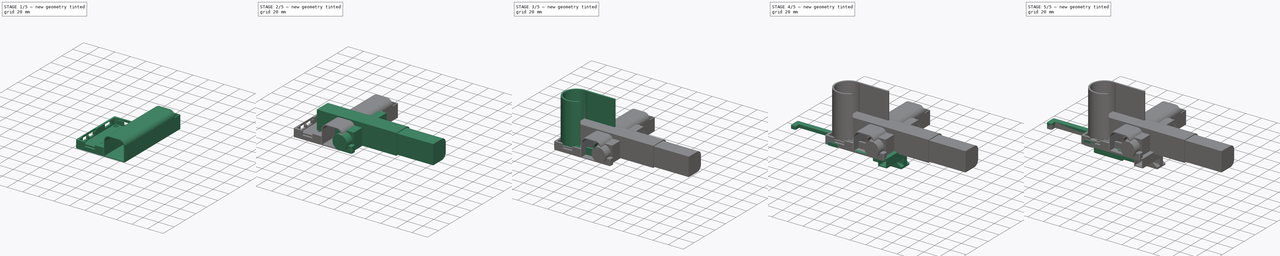
[diagram: build sequence overview — one tinted view per stage of 5, left to right]
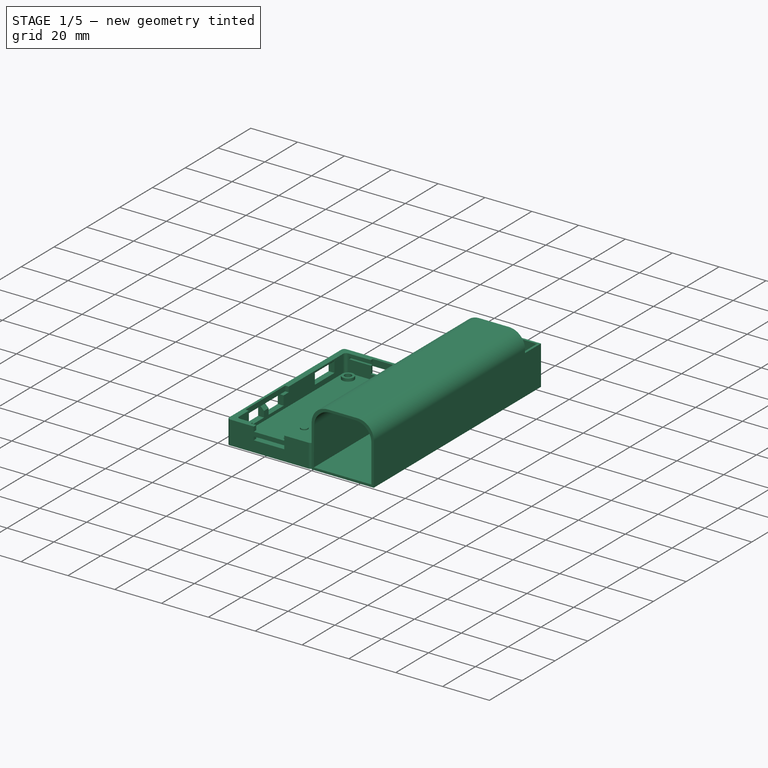
[diagram: stage 1 of 5 — iso view after this stage's code; geometry added in this stage tinted green]
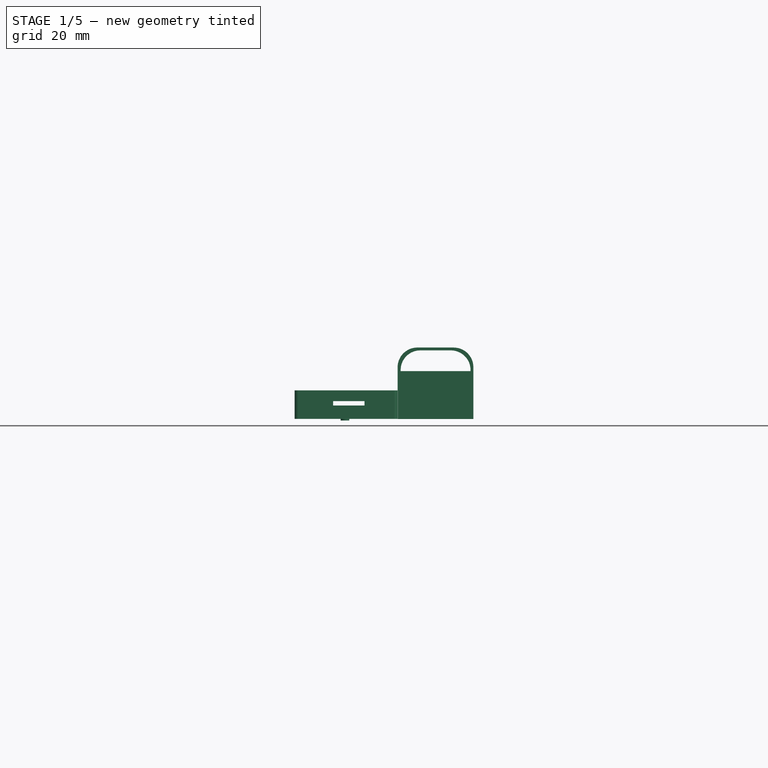
[diagram: stage 1 of 5 — front view after this stage's code; geometry added in this stage tinted green]
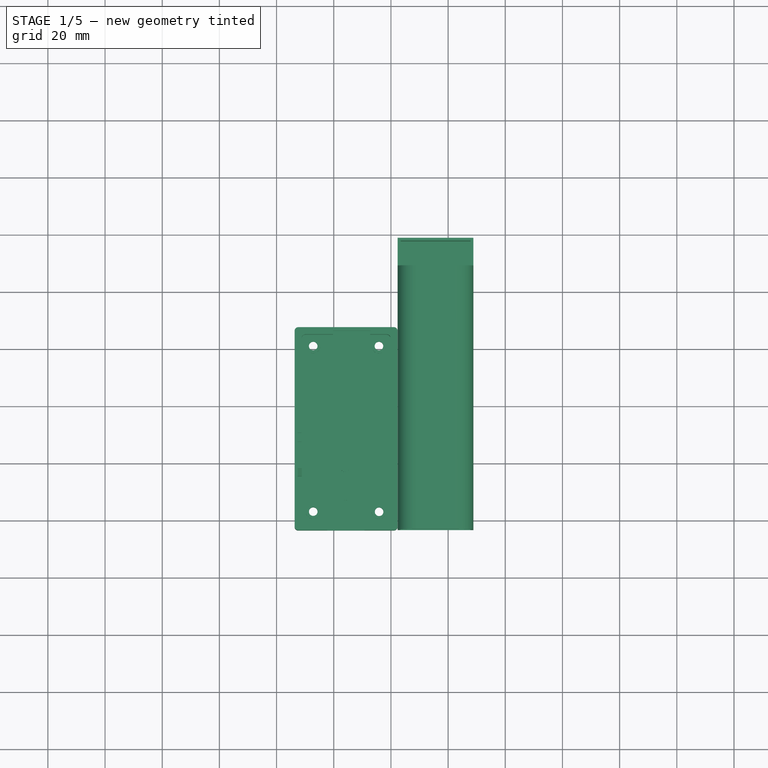
[diagram: stage 1 of 5 — top view after this stage's code; geometry added in this stage tinted green]
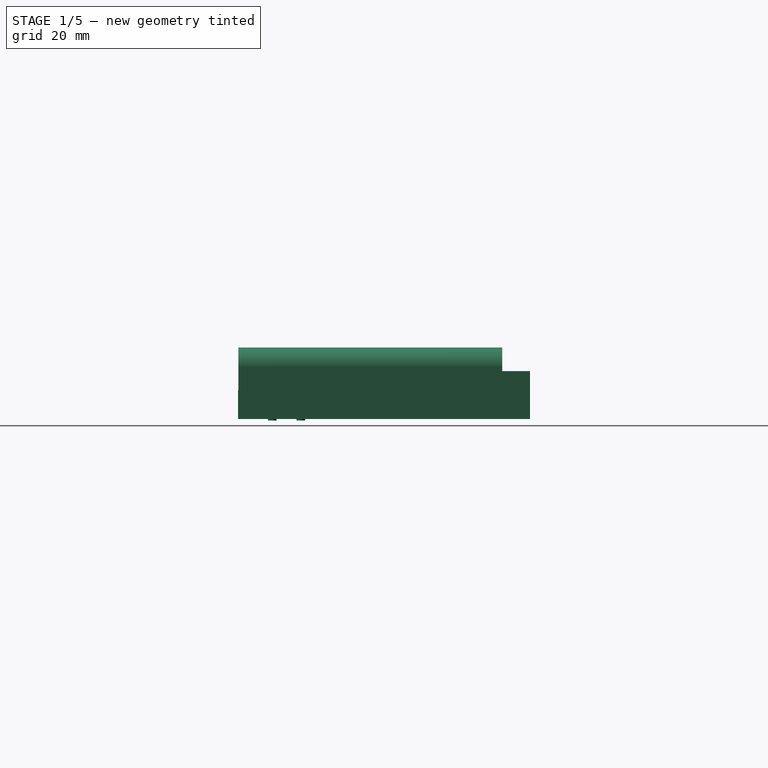
[diagram: stage 1 of 5 — right view after this stage's code; geometry added in this stage tinted green]
FCSTD DOCUMENT  (FreeCAD 0.16RUnknown)
Label: pinocs
License: All rights reserved
LicenseURL: http://en.wikipedia.org/wiki/All_rights_reserved
objects: Part::Cylinder×28, Part::Feature×22, Part::MultiFuse×15, Part::Cut×11, Part::Box×10, Sketcher::SketchObject×9, PartDesign::Pad×9
note: 113 computed .brp shape members not serialized (recipe doc carries the construction recipe); baked Part::Feature solids carry a one-line shape summary decoded from their .brp

FEATURE [Part::Cylinder] Cylinder014  label="shoulder1"
  Angle = 360
  Height = 3
  Placement = pos=(7.77947,-16.8556,0.338769) rot=(0,0,1;0rad)
  Radius = 2.5
FEATURE [Part::Cylinder] Cylinder015  label="hole1"
  Angle = 360
  Height = 6
  Placement = pos=(7.82251,-16.8117,-1) rot=(0,0,1;0rad)
  Radius = 1.5
FEATURE [Part::Cylinder] Cylinder016  label="shoulder2"
  Angle = 360
  Height = 3
  Placement = pos=(30.799,-16.8749,0.3389) rot=(0,0,1;0rad)
  Radius = 2.5
FEATURE [Part::Cylinder] Cylinder017  label="hole2"
  Angle = 360
  Height = 6
  Placement = pos=(30.8602,-16.8715,-0.999995) rot=(0,0,1;0rad)
  Radius = 1.5
FEATURE [Part::Cylinder] Cylinder018  label="shoulder3"
  Angle = 360
  Height = 3
  Placement = pos=(7.77844,41.1118,0.338848) rot=(0,0,1;0rad)
  Radius = 2.5
FEATURE [Part::Cylinder] Cylinder019  label="hole3"
  Angle = 360
  Height = 6
  Placement = pos=(7.807,41.1222,-1.00001) rot=(0,0,1;0rad)
  Radius = 1.5
FEATURE [Part::Cylinder] Cylinder020  label="shoulder4"
  Angle = 360
  Height = 3
  Placement = pos=(30.7954,41.0656,0.338937) rot=(0,0,1;0rad)
  Radius = 2.5
FEATURE [Part::Cylinder] Cylinder021  label="hole4"
  Angle = 360
  Height = 6
  Placement = pos=(30.804,41.1117,-1.00008) rot=(0,0,1;0rad)
  Radius = 1.5
FEATURE [Part::MultiFuse] Fusion002003003006  label="pi_case_shouldered"
  Shapes = -> [Pi_Zero_Case_CameraSlot001_solid001,Cylinder014,Cylinder016,Cylinder018,Cylinder020]
FEATURE [Part::MultiFuse] Fusion002003003007  label="pi_zero_holes"
  Shapes = -> [Cylinder015,Cylinder019,Cylinder017,Cylinder021]
FEATURE [Part::Cut] Cut001011  label="pi_case_with_holes"
  Base = -> Fusion002003003006
  Placement = pos=(-15,0,0.45) rot=(0,0,1;0rad)
  Tool = -> Fusion002003003007
FEATURE [Part::Feature] Fusion002003003013001  label="pinoc_small_w_batt_pack_r"
  shape: bbox 86.22 x 102.1 x 25 mm, 844 faces, 2 solids (baked)
FEATURE [Part::MultiFuse] Fusion002003003013002  label="pi_case_with_batt_pack"
  Shapes = -> [Cut001011003004001,Cut001011]
FEATURE [Part::Cylinder] Cylinder028
  Angle = 360
  Height = 3.5
  Placement = pos=(48,10,-2.5) rot=(0,1,0;1.5708rad)
  Radius = 1.5
FEATURE [Part::Cylinder] Cylinder029
  Angle = 360
  Height = 3.5
  Placement = pos=(48,20,-2.5) rot=(0,1,0;1.5708rad)
  Radius = 1.5
FEATURE [Part::MultiFuse] Fusion002003003013003  label="bracket_block_holes002"
  Placement = pos=(6.41151,-21.4199,51) rot=(0,1,0;1.5708rad)
  Shapes = -> [Cylinder028,Cylinder029]
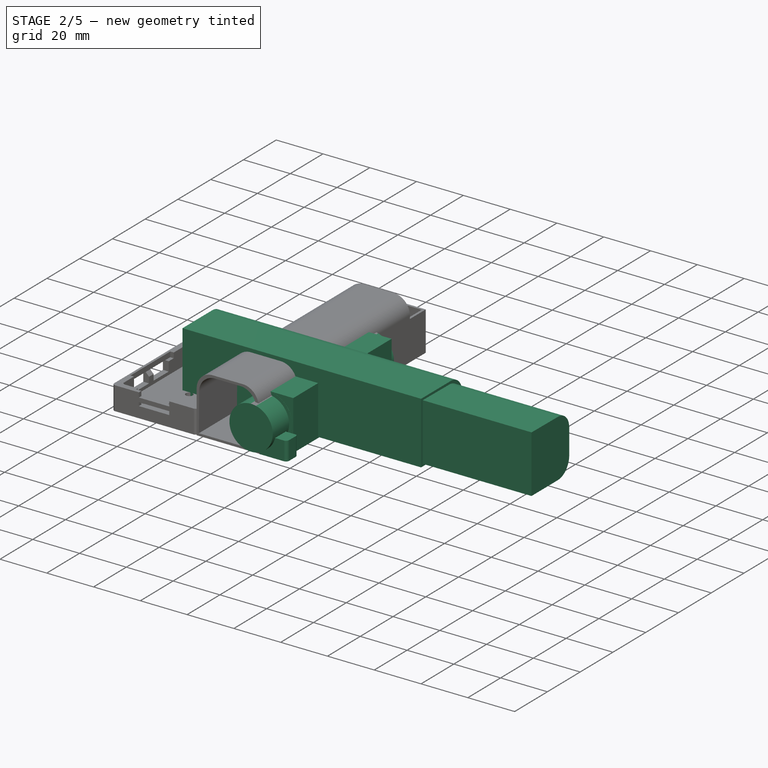
[diagram: stage 2 of 5 — iso view after this stage's code; geometry added in this stage tinted green]
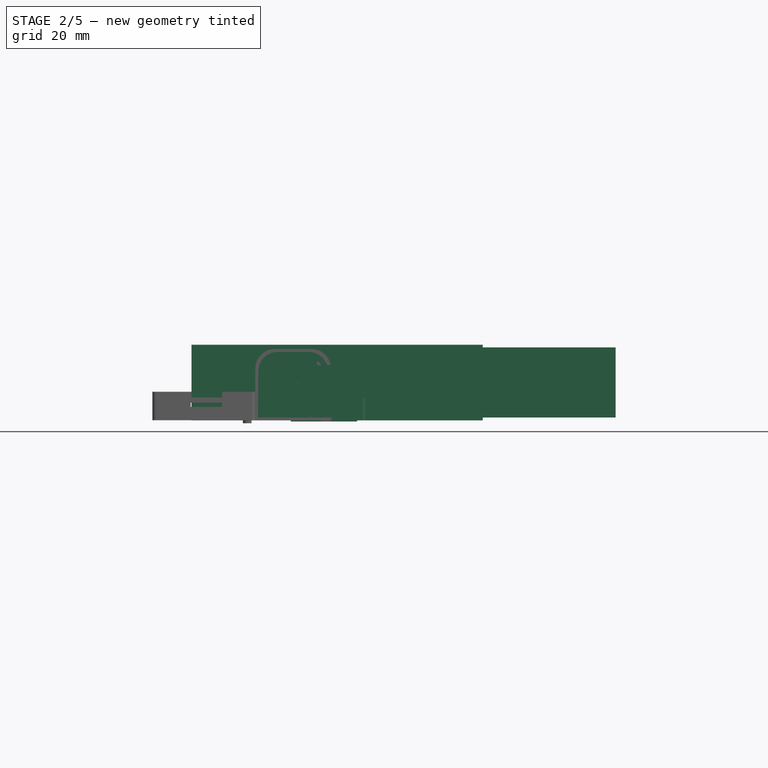
[diagram: stage 2 of 5 — front view after this stage's code; geometry added in this stage tinted green]
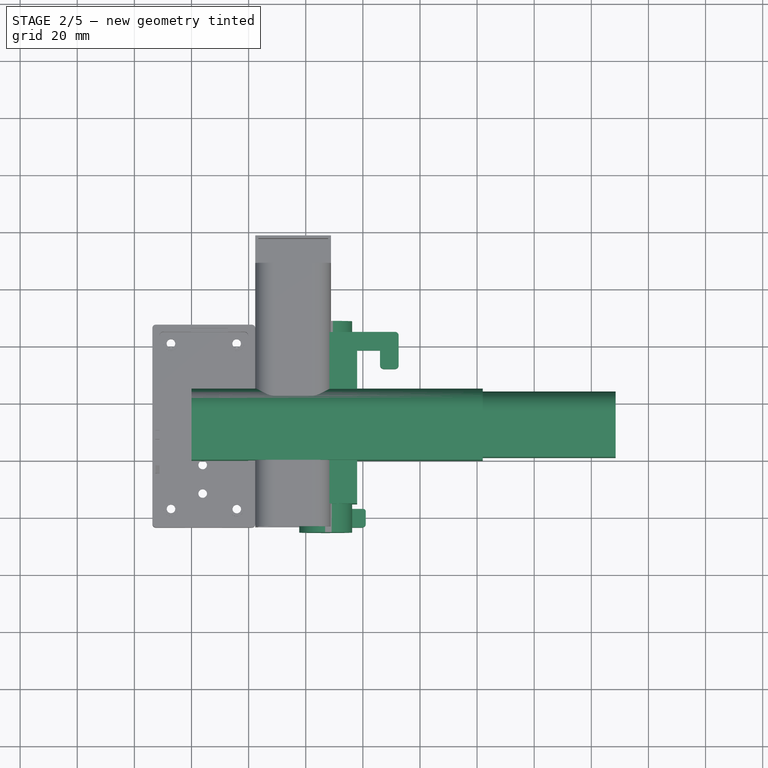
[diagram: stage 2 of 5 — top view after this stage's code; geometry added in this stage tinted green]
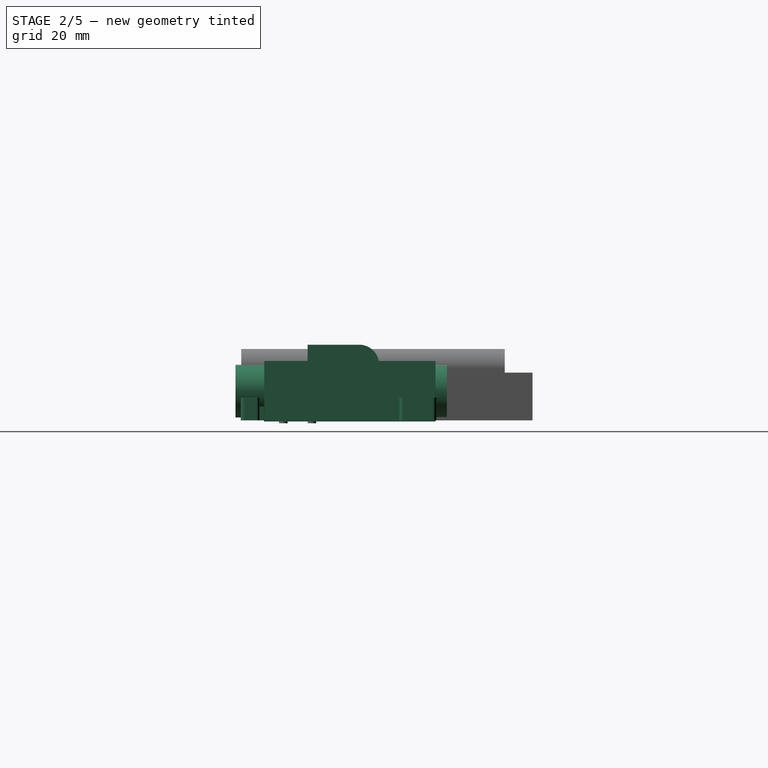
[diagram: stage 2 of 5 — right view after this stage's code; geometry added in this stage tinted green]
FEATURE [Part::Cylinder] Cylinder024
  Angle = 360
  Height = 3.5
  Placement = pos=(48,10,-2.5) rot=(0,1,0;1.5708rad)
  Radius = 1.5
FEATURE [Part::Cylinder] Cylinder025
  Angle = 360
  Height = 3.5
  Placement = pos=(48,20,-2.5) rot=(0,1,0;1.5708rad)
  Radius = 1.5
FEATURE [Part::MultiFuse] Fusion002003003011  label="bracket_block_holes001"
  Placement = pos=(22,-18.5,50.5) rot=(0,1,0;1.5708rad)
  Shapes = -> [Cylinder024,Cylinder025]
FEATURE [Part::Cylinder] Cylinder026
  Angle = 360
  Height = 60
  Placement = pos=(47,44.75,10.25) rot=(1,0,0;1.5708rad)
  Radius = 10.6
FEATURE [Part::Box] Box007  label="Cube005"
  Height = 10
  Length = 13
  Placement = pos=(34.7369,-15.2489,-0.392704) rot=(0,0,1;0rad)
  Width = 60
FEATURE [Part::Cylinder] Cylinder027
  Angle = 360
  Height = 74
  Placement = pos=(47,48.75,10.25) rot=(1,0,0;1.5708rad)
  Radius = 9.25
FEATURE [Part::Box] Box008  label="Cube006"
  Height = 21.2
  Length = 11
  Placement = pos=(47,-15.2,-0.39) rot=(0,0,1;0rad)
  Width = 60
FEATURE [PartDesign::Pad] Pad008003  label="batt_case_outer"
  Length = 102
  Length2 = 100
  Placement = pos=(0,0,0) rot=(0.57735,0.57735,0.57735;2.0944rad)
  Sketch = -> Sketch005
  Type = 0
FEATURE [PartDesign::Pad] Pad008004  label="batt_case_inner"
  Length = 110
  Length2 = 100
  Placement = pos=(38.5,0,0) rot=(0.57735,0.57735,0.57735;2.0944rad)
  Sketch = -> Sketch004
  Type = 0
FEATURE [Part::Feature] Pad008003001  label="batt_case_outer_r"
  shape: bbox 102 x 25 x 26.5 mm, 8 faces (baked)
FEATURE [Part::Feature] Pad008004001  label="batt_case_inner_r"
  Placement = pos=(-37.5,0,0) rot=(0,0,1;0rad)
  shape: bbox 110 x 23 x 24.58 mm, 9 faces (baked)
FEATURE [Part::Feature] Pad008004002  label="Bracket_4mm_Refined_90degPivot002"
  Placement = pos=(48.1,41.5384,0) rot=(0,0,1;1.5708rad)
  shape: bbox 24.5 x 68.5 x 4 mm, 19 faces (baked)
FEATURE [Part::Box] Box009  label="Cube007"
  Height = 28
  Length = 10
  Placement = pos=(-0.281725,16.7334,-0.728184) rot=(0,0,1;0rad)
  Width = 10
FEATURE [Part::Cut] Cut001011003003  label="batt_case_outer_with_cut"
  Base = -> Pad008003001
  Tool = -> Box009
FEATURE [Part::Cut] Cut001011003004  label="batt_case"
  Base = -> Cut001011003003
  Tool = -> Pad008004001
FEATURE [Part::Feature] Cut001011003004001  label="batt_case_r"
  Placement = pos=(48.842,78.75,0) rot=(0.57735,-0.57735,-0.57735;2.0944rad)
  shape: bbox 26.5 x 102 x 25 mm, 17 faces (baked)
FEATURE [Part::Feature] Pad008004003  label="Bracket_4mm_Refined_90degPivot003"
  Placement = pos=(48.1,41.5384,4) rot=(0,0,1;1.5708rad)
  shape: bbox 24.5 x 68.5 x 4 mm, 19 faces (baked)
FEATURE [Part::MultiFuse] Fusion002003003012  label="double_wide_bracket"
  Shapes = -> [Pad008004003,Pad008004002]
FEATURE [Part::Cut] Cut001011003004002  label="pinoc_large_w_batt_pack"
  Base = -> Fusion002003003013002
  Tool = -> Fusion002003003013003
FEATURE [Part::Feature] Cut001011003004002001  label="pinoc_large_w_batt_pack_r"
  shape: bbox 62.53 x 102.1 x 25 mm, 829 faces, 2 solids (baked)
FEATURE [Part::Feature] Cut001011003004002002  label="batt_case_r2"
  Placement = pos=(48.842,78.75,0) rot=(0.57735,-0.57735,-0.57735;2.0944rad)
  shape: bbox 26.5 x 102 x 25 mm, 17 faces (baked)
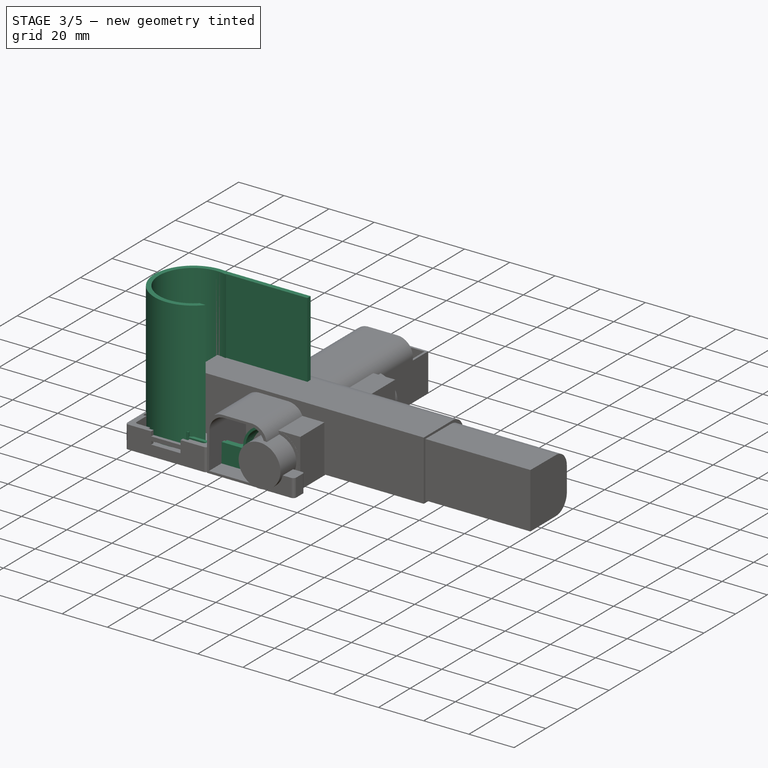
[diagram: stage 3 of 5 — iso view after this stage's code; geometry added in this stage tinted green]
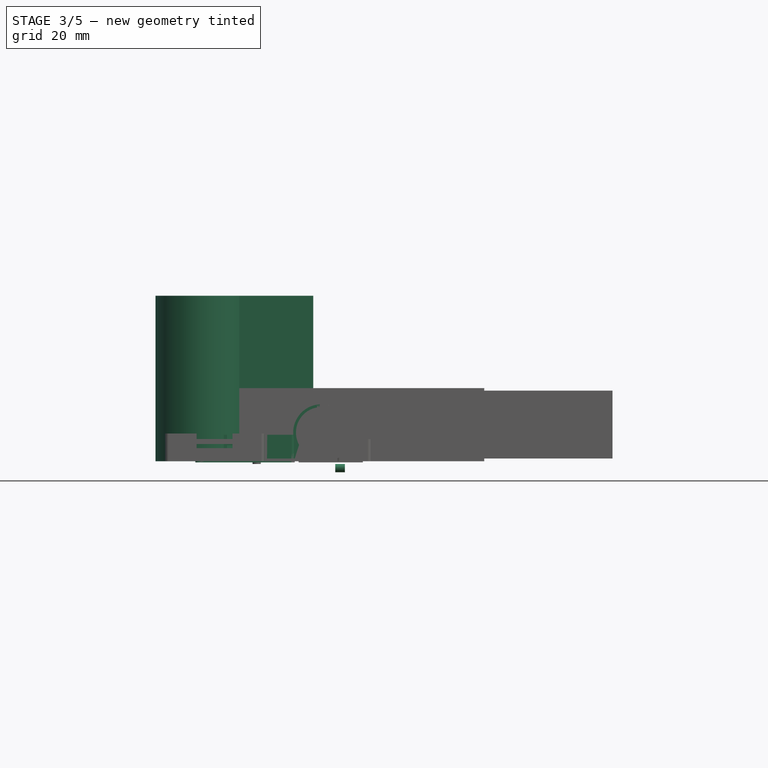
[diagram: stage 3 of 5 — front view after this stage's code; geometry added in this stage tinted green]
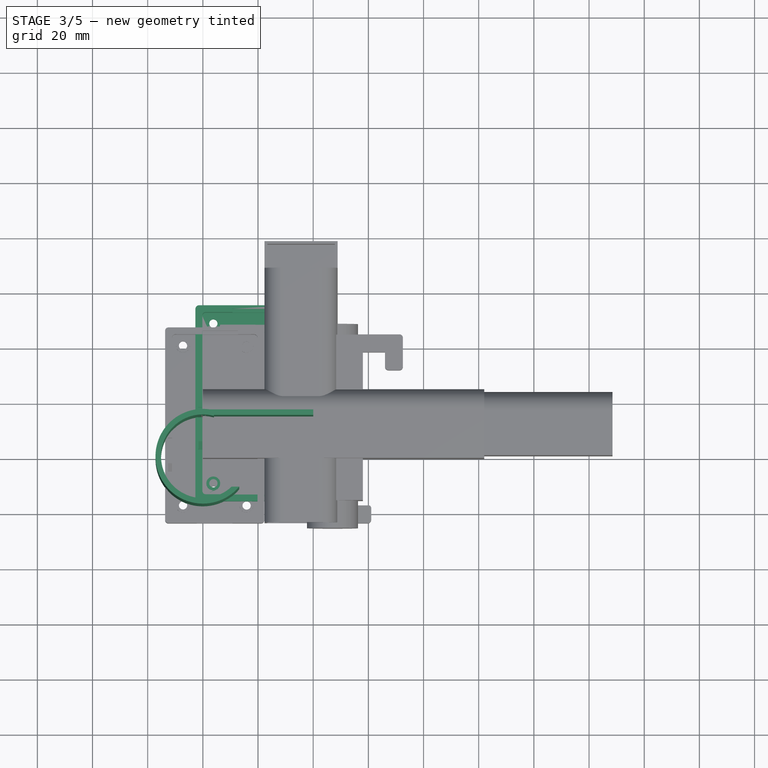
[diagram: stage 3 of 5 — top view after this stage's code; geometry added in this stage tinted green]
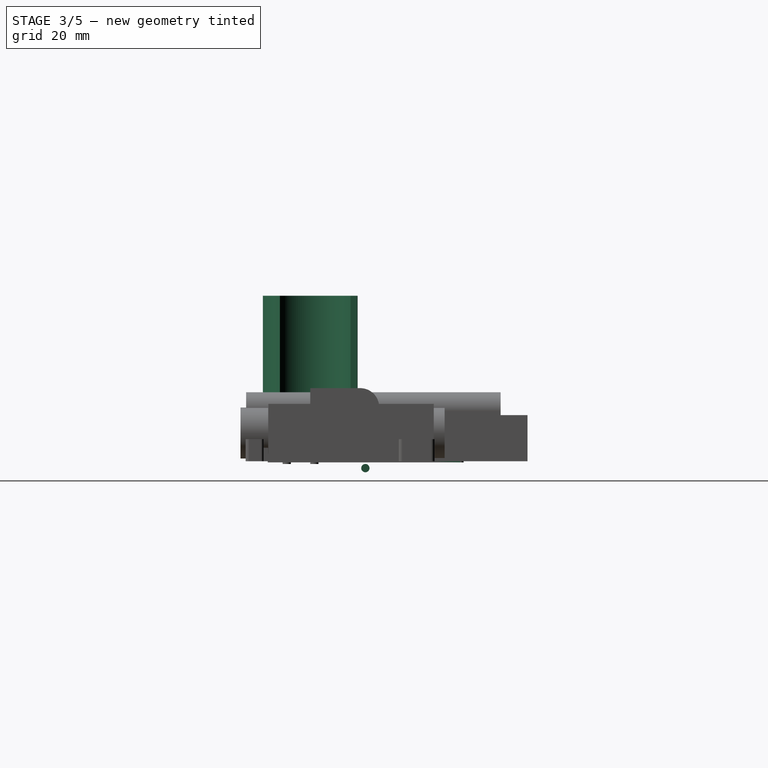
[diagram: stage 3 of 5 — right view after this stage's code; geometry added in this stage tinted green]
FEATURE [Part::Cylinder] Cylinder011
  Angle = 360
  Height = 3.5
  Placement = pos=(48,20,-2.5) rot=(0,1,0;1.5708rad)
  Radius = 1.5
FEATURE [Part::Feature] Pad008002  label="Bracket_4mm_Refined_90degPivot001"
  Placement = pos=(48.1,41.5384,0) rot=(0,0,1;1.5708rad)
  shape: bbox 24.5 x 68.5 x 4 mm, 19 faces (baked)
FEATURE [Part::Feature] Pi_Zero_Case_CameraSlot001_solid001  label="Pi_Zero_Case_CameraSlot001 (Solid)001"
  Placement = pos=(-17.1892,91.1012,2.09101) rot=(0,0,1;3.14159rad)
  shape: bbox 36 x 71 x 10 mm, 1202 faces (baked)
FEATURE [Part::Cylinder] Cylinder012
  Angle = 360
  Height = 60
  Placement = pos=(43,44.75,10.4) rot=(1,0,0;1.5708rad)
  Radius = 10.25
FEATURE [Part::Cylinder] Cylinder013
  Angle = 360
  Height = 74
  Placement = pos=(43,48.75,10.4) rot=(1,0,0;1.5708rad)
  Radius = 9.25
FEATURE [Part::Box] Box003  label="Cube001"
  Height = 10
  Length = 15
  Placement = pos=(33,-15.25,0) rot=(0,0,1;0rad)
  Width = 60
FEATURE [Part::Feature] Cut001011001  label="pi_case_with_holes_R"
  Placement = pos=(-4,8,0) rot=(0,0,1;0rad)
  shape: bbox 36 x 71 x 10 mm, 810 faces (baked)
FEATURE [Part::Box] Box004  label="Cube002"
  Height = 10
  Length = 5
  Placement = pos=(24.2804,-5.72009,-3.20188) rot=(0,0,1;0rad)
  Width = 51.5
FEATURE [Part::Cut] Cut001011002  label="pi_case_with_gpio_cut"
  Base = -> Cut001011001
  Tool = -> Box004
FEATURE [Part::MultiFuse] Fusion002003003008  label="assembly"
  Shapes = -> [Pad008002,Cylinder012,Box003,Cut001011002]
FEATURE [Part::Cut] Cut001011003  label="pi_case_with_batt_loop"
  Base = -> Fusion002003003008
  Tool = -> Cylinder013
FEATURE [Part::Feature] Cut001011003001  label="pi_case_with_batt_loop_R"
  shape: bbox 75.22 x 78.99 x 21.06 mm, 826 faces (baked)
FEATURE [Part::Cylinder] Cylinder022  label="Cylinder014"
  Angle = 360
  Height = 60
  Radius = 17.17
FEATURE [Part::Cylinder] Cylinder023  label="Cylinder015"
  Angle = 360
  Height = 64
  Placement = pos=(0,0,-2) rot=(0,0,1;0rad)
  Radius = 15.17
FEATURE [Part::Box] Box005  label="Cube003"
  Height = 60
  Length = 40
  Placement = pos=(0,15,0) rot=(0,0,1;0rad)
  Width = 2
FEATURE [Part::Box] Box006  label="Cube004"
  Height = 64
  Length = 15
  Placement = pos=(4,-11,-2) rot=(0,0,1;0rad)
  Width = 26
FEATURE [Part::MultiFuse] Fusion002003003009
  Shapes = -> [Cylinder023,Box006]
FEATURE [Part::MultiFuse] Fusion002003003010
  Shapes = -> [Cylinder022,Box005]
FEATURE [Part::Cut] Cut001011003002  label="small_ctl_panel"
  Base = -> Fusion002003003010
  Tool = -> Fusion002003003009
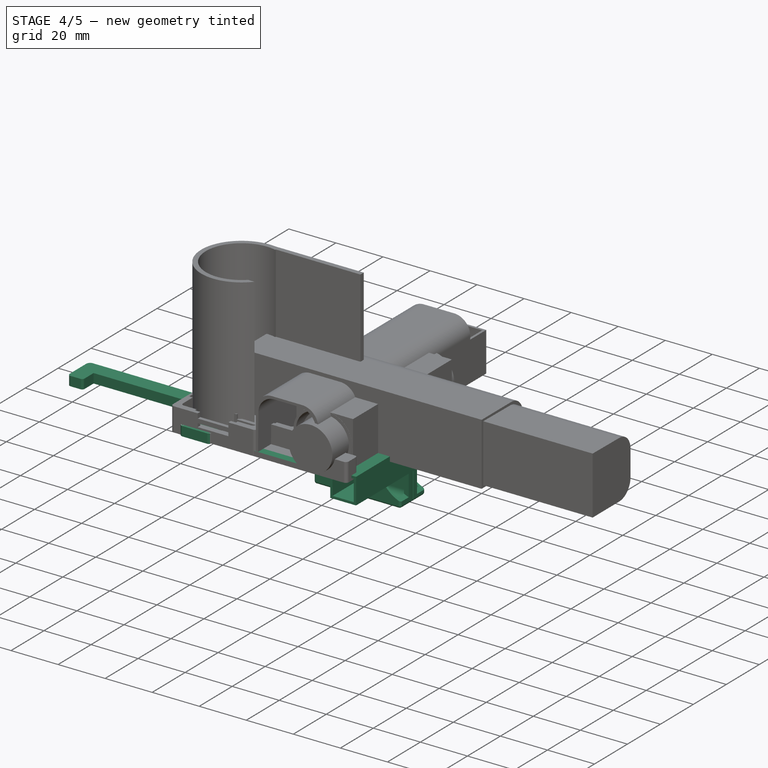
[diagram: stage 4 of 5 — iso view after this stage's code; geometry added in this stage tinted green]
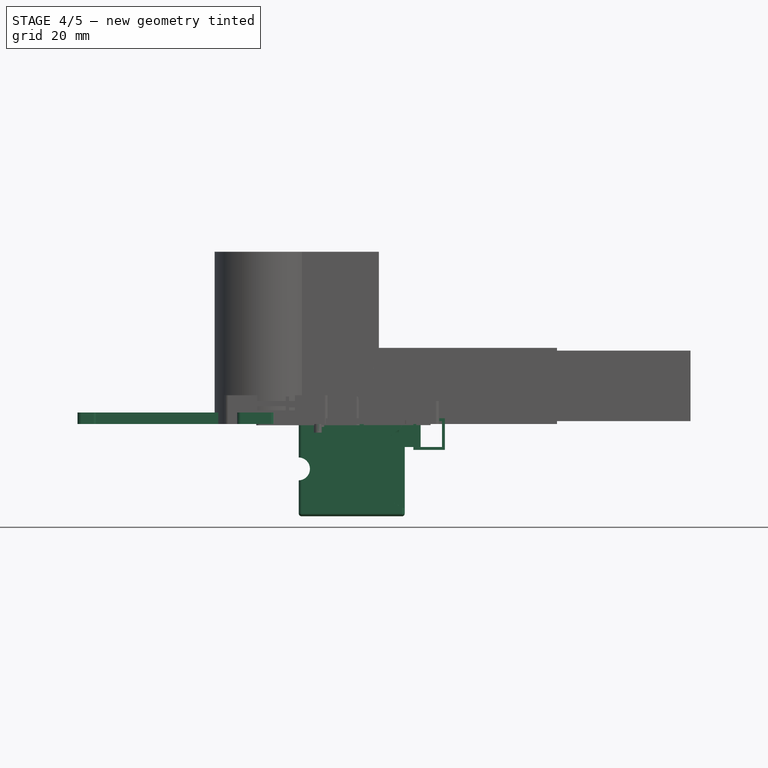
[diagram: stage 4 of 5 — front view after this stage's code; geometry added in this stage tinted green]
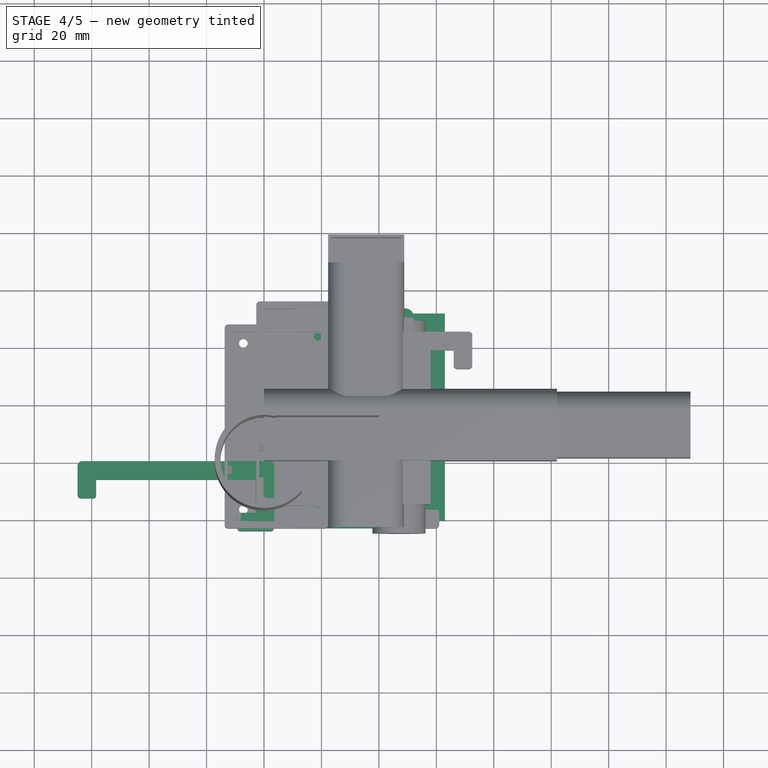
[diagram: stage 4 of 5 — top view after this stage's code; geometry added in this stage tinted green]
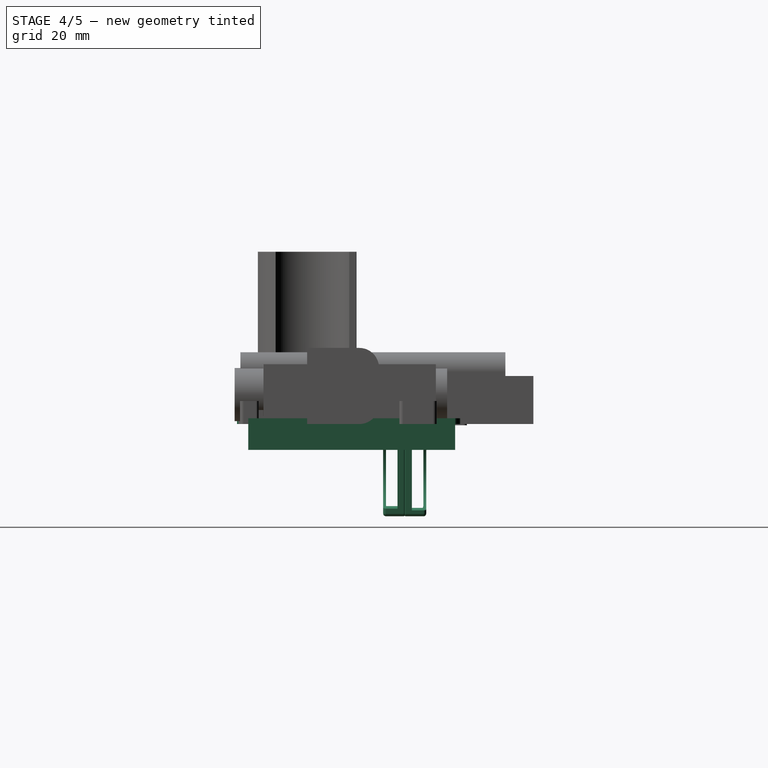
[diagram: stage 4 of 5 — right view after this stage's code; geometry added in this stage tinted green]
FEATURE [Part::Box] Box  label="PiPlate_sheath_outer"
  Height = 11
  Length = 11
  Placement = pos=(52,-20.5,-9) rot=(0,0,1;0rad)
  Width = 72
FEATURE [Part::Box] Box001  label="PiPlate_sheath_inner"
  Height = 9
  Length = 9
  Placement = pos=(53,-21.5,-8) rot=(0,0,1;0rad)
  Width = 74
FEATURE [Sketcher::SketchObject] Sketch007  label="PiPlate001"
  sketch-geometry (12):
    g0: LineSegment StartX=4 StartY=-23.3163 StartZ=0 EndX=49 EndY=-23.3163 EndZ=0
    g1: LineSegment StartX=52.3163 StartY=-20 StartZ=0 EndX=52.3163 EndY=50 EndZ=0
    g2: LineSegment StartX=49 StartY=53.3163 StartZ=0 EndX=4 EndY=53.3163 EndZ=0
    g3: LineSegment StartX=0.683731 StartY=50 StartZ=0 EndX=0.683731 EndY=-20 EndZ=0
    g4: ArcOfCircle CenterX=4 CenterY=50 CenterZ=0 NormalX=0 NormalY=0 NormalZ=1 Radius=3.31627 StartAngle=1.5708 EndAngle=3.14159
    g5: ArcOfCircle CenterX=49 CenterY=50 CenterZ=0 NormalX=0 NormalY=0 NormalZ=1 Radius=3.31627 StartAngle=0 EndAngle=1.5708
    g6: ArcOfCircle CenterX=49 CenterY=-20 CenterZ=0 NormalX=0 NormalY=0 NormalZ=1 Radius=3.31627 StartAngle=4.71239 EndAngle=6.28319
    g7: ArcOfCircle CenterX=4 CenterY=-20 CenterZ=0 NormalX=0 NormalY=0 NormalZ=1 Radius=3.31627 StartAngle=3.14159 EndAngle=4.71239
    g8: LineSegment [constr] StartX=4 StartY=50 StartZ=0 EndX=49 EndY=50 EndZ=0
    g9: LineSegment [constr] StartX=4 StartY=-20 StartZ=0 EndX=49 EndY=-20 EndZ=0
    g10: LineSegment [constr] StartX=4 StartY=50 StartZ=0 EndX=4 EndY=-20 EndZ=0
    g11: LineSegment [constr] StartX=49 StartY=-20 StartZ=0 EndX=49 EndY=50 EndZ=0
  constraints (27):
    c: Horizontal(g0)
    c: Horizontal(g2)
    c: Vertical(g1)
    c: Vertical(g3)
    c: Tangent(g3,g4) = -1.5708
    c: Tangent(g2,g4) = -1.5708
    c: Tangent(g2,g5) = -1.5708
    c: Tangent(g1,g5) = -1.5708
    c: Tangent(g1,g6) = -1.5708
    c: Tangent(g0,g6) = -1.5708
    c: Tangent(g0,g7) = -1.5708
    c: Tangent(g3,g7) = -1.5708
    c: Equal(g4,g6)
    c: Equal(g5,g7)
    c: Coincident(g8,g4)
    c: Coincident(g8,g5)
    c: Horizontal(g8)
    c: Coincident(g9,g7)
    c: Coincident(g9,g6)
    c: Coincident(g10,g4)
    c: Coincident(g10,g7)
    c: Coincident(g11,g6)
    c: Coincident(g11,g5)
    c: DistanceY(g10,g10) = 70
    c: DistanceX(g8,g8) = 45
    c: DistanceX(g7,g-1) = -4
    c: DistanceY(g7,g-1) = 20
FEATURE [PartDesign::Pad] Pad007  label="PiPlateBlank_NoPads"
  Length = 2
  Length2 = 100
  Sketch = -> Sketch007
  Type = 0
FEATURE [Part::Feature] Cut001007  label="BattBox004"
  Placement = pos=(11,34.4556,-10.4213) rot=(1,0,0;1.5708rad)
  shape: bbox 36.9 x 7.997 x 33 mm, 3760 faces (baked)
FEATURE [Part::Cut] Cut001008  label="PiPlateSheath"
  Base = -> Box
  Tool = -> Box001
FEATURE [Sketcher::SketchObject] Sketch008  label="BaseBracketSketch002"
  sketch-geometry (24):
    g0: LineSegment StartX=2.25303 StartY=0.0733442 StartZ=0 EndX=-63.2909 EndY=0.0733442 EndZ=0
    g1: LineSegment StartX=-2.93148 StartY=-17.9267 StartZ=0 EndX=-8.08736 EndY=-17.9267 EndZ=0
    g2: LineSegment StartX=-8.12007 StartY=-24.4267 StartZ=0 EndX=2.29473 EndY=-24.4267 EndZ=0
    g3: LineSegment StartX=3.56852 StartY=-1.24214 StartZ=0 EndX=3.56852 EndY=-23.1529 EndZ=0
    g4: LineSegment StartX=-2.93148 StartY=-6.42666 StartZ=0 EndX=-2.93148 EndY=-17.9267 EndZ=0
    g5: LineSegment StartX=-9.43148 StartY=-19.2708 StartZ=0 EndX=-9.43148 EndY=-23.1152 EndZ=0
    g6: LineSegment StartX=-64.9315 StartY=-1.56728 StartZ=0 EndX=-64.9315 EndY=-11.5969 EndZ=0
    g7: LineSegment StartX=-59.3978 StartY=-12.9267 StartZ=0 EndX=-63.6017 EndY=-12.9267 EndZ=0
    g8: LineSegment StartX=-58.4315 StartY=-11.9603 StartZ=0 EndX=-58.4315 EndY=-6.42666 EndZ=0
    g9: LineSegment StartX=-58.4315 StartY=-6.42666 StartZ=0 EndX=-2.93148 EndY=-6.42666 EndZ=0
    g10: LineSegment [constr] StartX=-2.93148 StartY=-6.42666 StartZ=0 EndX=3.56852 EndY=-6.42666 EndZ=0
    g11: LineSegment [constr] StartX=-2.93148 StartY=-6.42666 StartZ=0 EndX=-2.93148 EndY=0.0733442 EndZ=0
    g12: LineSegment [constr] StartX=-64.9315 StartY=-6.42666 StartZ=0 EndX=-58.4315 EndY=-6.42666 EndZ=0
    g13: LineSegment [constr] StartX=-62.8231 StartY=-6.42666 StartZ=0 EndX=-62.8231 EndY=-12.9267 EndZ=0
    g14: LineSegment [constr] StartX=-2.93148 StartY=-17.9267 StartZ=0 EndX=-2.93148 EndY=-24.4267 EndZ=0
    g15: LineSegment [constr] StartX=-2.93148 StartY=-21.2113 StartZ=0 EndX=-9.43148 EndY=-21.2113 EndZ=0
    g16: LineSegment [constr] StartX=-7.26896 StartY=-6.42666 StartZ=0 EndX=-7.26896 EndY=-17.9267 EndZ=0
    g17: ArcOfCircle CenterX=-59.3978 CenterY=-11.9603 CenterZ=0 NormalX=0 NormalY=0 NormalZ=1 Radius=0.966314 StartAngle=4.71239 EndAngle=6.28319
    g18: ArcOfCircle CenterX=-63.6017 CenterY=-11.5969 CenterZ=0 NormalX=0 NormalY=0 NormalZ=1 Radius=1.32973 StartAngle=3.14159 EndAngle=4.71239
    g19: ArcOfCircle CenterX=-63.2909 CenterY=-1.56728 CenterZ=0 NormalX=0 NormalY=0 NormalZ=1 Radius=1.64063 StartAngle=1.5708 EndAngle=3.14159
    g20: ArcOfCircle CenterX=2.25303 CenterY=-1.24214 CenterZ=0 NormalX=0 NormalY=0 NormalZ=1 Radius=1.31549 StartAngle=0 EndAngle=1.5708
    g21: ArcOfCircle CenterX=2.29473 CenterY=-23.1529 CenterZ=0 NormalX=0 NormalY=0 NormalZ=1 Radius=1.27379 StartAngle=4.71239 EndAngle=6.28319
    g22: ArcOfCircle CenterX=-8.12007 CenterY=-23.1152 CenterZ=0 NormalX=0 NormalY=0 NormalZ=1 Radius=1.31141 StartAngle=3.14159 EndAngle=4.71239
    g23: ArcOfCircle CenterX=-8.08736 CenterY=-19.2708 CenterZ=0 NormalX=0 NormalY=0 NormalZ=1 Radius=1.34411 StartAngle=1.5708 EndAngle=3.14159
  constraints (58):
    c: Horizontal(g2)
    c: Coincident(g4,g1)
    c: Vertical(g5)
    c: Parallel(g4,g3)
    c: Parallel(g1,g2)
    c: Horizontal(g0)
    c: Vertical(g8)
    c: Horizontal(g9)
    c: PointOnObject(g9,g4)
    c: PointOnObject(g4,g9)
    c: PointOnObject(g9,g8)
    c: PointOnObject(g8,g9)
    c: Perpendicular(g8,g7)
    c: Perpendicular(g7,g6)
    c: Perpendicular(g3,g0)
    c: Coincident(g10,g4)
    c: PointOnObject(g10,g3)
    c: Horizontal(g10)
    c: DistanceX(g10,g10) = 6.5
    c: Coincident(g11,g4)
    c: PointOnObject(g11,g0)
    c: Vertical(g11)
    c: DistanceY(g11,g11) = 6.5
    c: DistanceX(g9,g9) = 55.5
    c: PointOnObject(g12,g6)
    c: Coincident(g12,g8)
    c: Horizontal(g12)
    c: PointOnObject(g13,g12)
    c: PointOnObject(g13,g7)
    c: Vertical(g13)
    c: DistanceY(g13,g13) = 6.5
    c: DistanceX(g12,g12) = 6.5
    c: Coincident(g14,g1)
    c: PointOnObject(g14,g2)
    c: Vertical(g14)
    c: DistanceY(g14,g14) = 6.5
    c: PointOnObject(g15,g5)
    c: Horizontal(g15)
    c: PointOnObject(g15,g14)
    c: DistanceX(g15,g15) = 6.5
    c: PointOnObject(g16,g9)
    c: PointOnObject(g16,g1)
    c: Vertical(g16)
    c: DistanceY(g16,g16) = 11.5
    c: Tangent(g8,g17) = -1.5708
    c: Tangent(g7,g17) = 1.5708
    c: Tangent(g7,g18) = 1.5708
    c: Tangent(g6,g18) = -1.5708
    c: Tangent(g6,g19) = -1.5708
    c: Tangent(g0,g19) = -1.5708
    c: Tangent(g0,g20) = -1.5708
    c: Tangent(g3,g20) = 1.5708
    c: Tangent(g3,g21) = 1.5708
    c: Tangent(g2,g21) = -1.5708
    c: Tangent(g2,g22) = -1.5708
    c: Tangent(g5,g22) = -1.5708
    c: Tangent(g1,g23) = -1.5708
    c: Tangent(g5,g23) = -1.5708
FEATURE [PartDesign::Pad] Pad008  label="Bracket_4mm001"
  Length = 4
  Length2 = 100
  Sketch = -> Sketch008
  Type = 0
FEATURE [Part::Feature] Pad008001  label="Bracket_4mm_Refined_90degPivot"
  Placement = pos=(48.1,41.5384,0) rot=(0,0,1;1.5708rad)
  shape: bbox 24.5 x 68.5 x 4 mm, 19 faces (baked)
FEATURE [Part::Feature] Cut001009  label="BattBox005"
  Placement = pos=(11,33.4538,-20.803) rot=(-1,0,0;1.5708rad)
  shape: bbox 36.9 x 7.997 x 33 mm, 3760 faces (baked)
FEATURE [Part::MultiFuse] Fusion002003003  label="DualBatt"
  Shapes = -> [Cut001009,Cut001007]
FEATURE [Part::Feature] Fusion002003003001  label="DualBatt_Refined"
  Placement = pos=(75.25,4,33.15) rot=(0,0,1;1.5708rad)
  shape: bbox 15 x 36.9 x 33.02 mm, 5314 faces (baked)
FEATURE [Part::Cylinder] Cylinder006
  Angle = 360
  Height = 10
  Placement = pos=(18.75,43.5,-3) rot=(0,0,1;0rad)
  Radius = 1.375
FEATURE [Part::Cylinder] Cylinder009
  Angle = 360
  Height = 10
  Placement = pos=(18.75,-14.75,-3) rot=(0,0,1;0rad)
  Radius = 1.375
FEATURE [Part::MultiFuse] Fusion002003003003  label="hole-cuts2"
  Shapes = -> [Cylinder006,Cylinder009]
FEATURE [Part::Box] Box002  label="Cube"
  Height = 12
  Length = 6.5
  Placement = pos=(48.026,5,-8) rot=(0,0,1;0rad)
  Width = 20
FEATURE [Part::MultiFuse] Fusion002003003004  label="BracketWithBlock_C"
  Shapes = -> [Box002,Pad008001]
FEATURE [Part::Cylinder] Cylinder010
  Angle = 360
  Height = 3.5
  Placement = pos=(48,10,-2.5) rot=(0,1,0;1.5708rad)
  Radius = 1.5
FEATURE [Part::MultiFuse] Fusion002003003005  label="bracket_block_holes"
  Shapes = -> [Cylinder010,Cylinder011]
FEATURE [Part::Cut] Cut001010  label="BracketBlock_Final_C"
  Base = -> Fusion002003003004
  Tool = -> Fusion002003003005
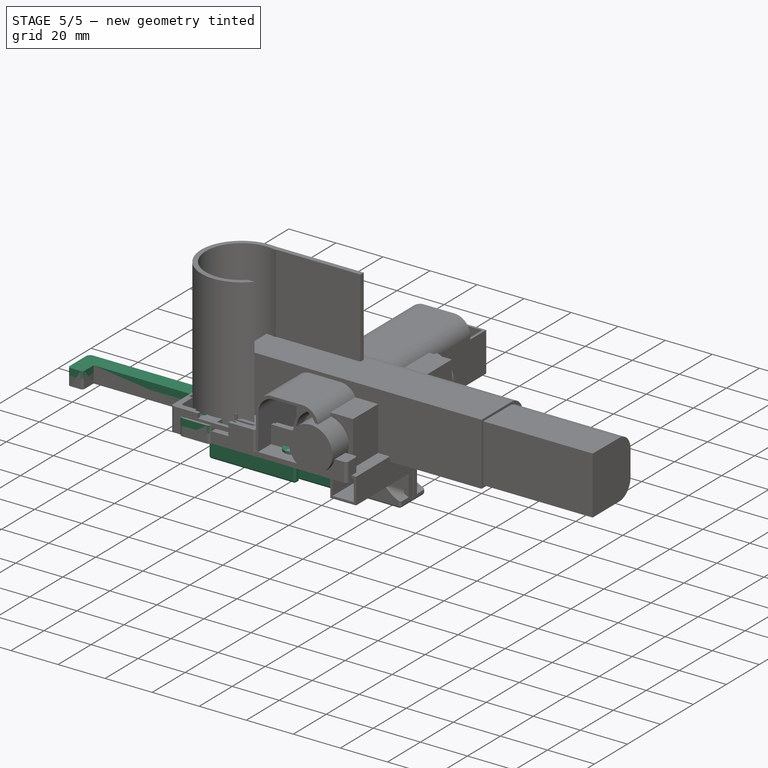
[diagram: stage 5 of 5 — iso view after this stage's code; geometry added in this stage tinted green]
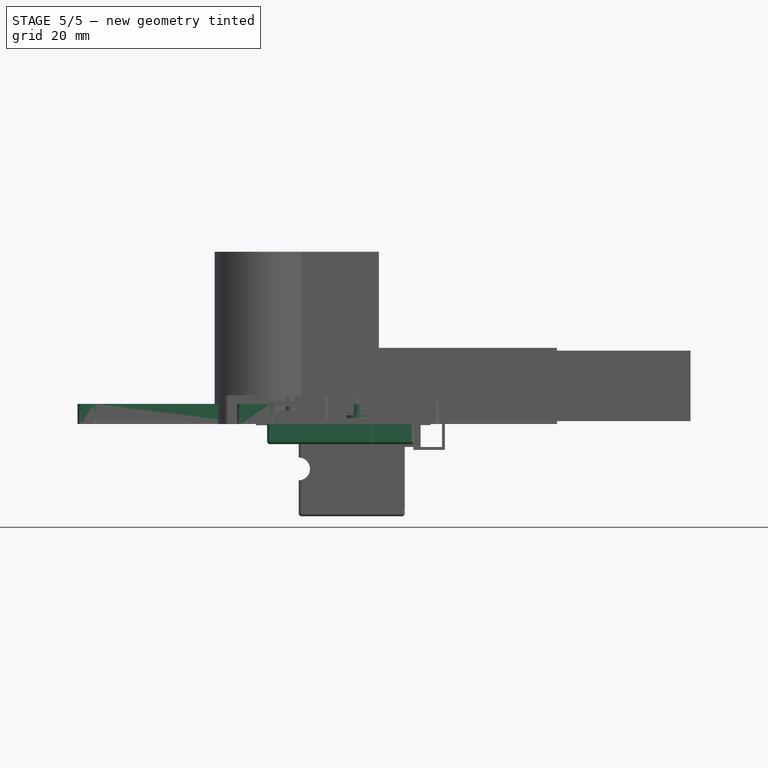
[diagram: stage 5 of 5 — front view after this stage's code; geometry added in this stage tinted green]
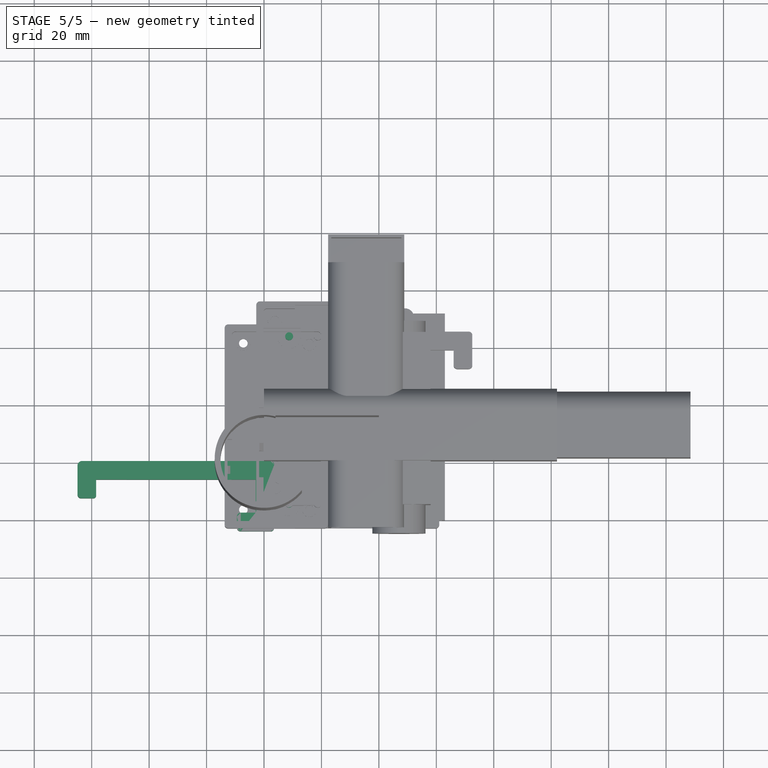
[diagram: stage 5 of 5 — top view after this stage's code; geometry added in this stage tinted green]
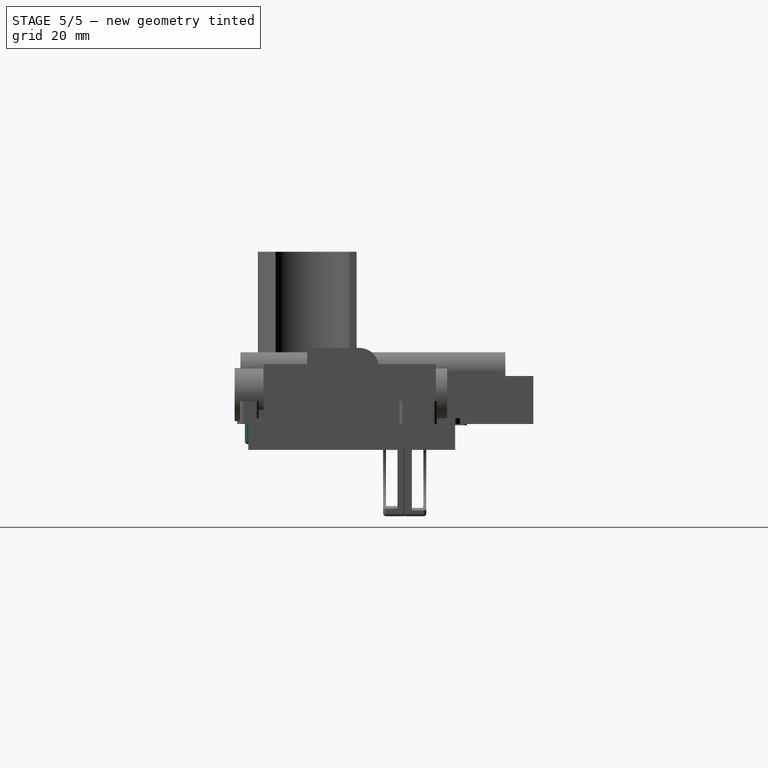
[diagram: stage 5 of 5 — right view after this stage's code; geometry added in this stage tinted green]
FEATURE [Sketcher::SketchObject] Sketch  label="BaseBracketSketch"
  sketch-geometry (24):
    g0: LineSegment StartX=2.25303 StartY=0.0733442 StartZ=0 EndX=-63.2909 EndY=0.0733442 EndZ=0
    g1: LineSegment StartX=-2.93148 StartY=-17.9267 StartZ=0 EndX=-8.08736 EndY=-17.9267 EndZ=0
    g2: LineSegment StartX=-8.12007 StartY=-24.4267 StartZ=0 EndX=2.29473 EndY=-24.4267 EndZ=0
    g3: LineSegment StartX=3.56852 StartY=-1.24214 StartZ=0 EndX=3.56852 EndY=-23.1529 EndZ=0
    g4: LineSegment StartX=-2.93148 StartY=-6.42666 StartZ=0 EndX=-2.93148 EndY=-17.9267 EndZ=0
    g5: LineSegment StartX=-9.43148 StartY=-19.2708 StartZ=0 EndX=-9.43148 EndY=-23.1152 EndZ=0
    g6: LineSegment StartX=-64.9315 StartY=-1.56728 StartZ=0 EndX=-64.9315 EndY=-11.5969 EndZ=0
    g7: LineSegment StartX=-59.3978 StartY=-12.9267 StartZ=0 EndX=-63.6017 EndY=-12.9267 EndZ=0
    g8: LineSegment StartX=-58.4315 StartY=-11.9603 StartZ=0 EndX=-58.4315 EndY=-6.42666 EndZ=0
    g9: LineSegment StartX=-58.4315 StartY=-6.42666 StartZ=0 EndX=-2.93148 EndY=-6.42666 EndZ=0
    g10: LineSegment [constr] StartX=-2.93148 StartY=-6.42666 StartZ=0 EndX=3.56852 EndY=-6.42666 EndZ=0
    g11: LineSegment [constr] StartX=-2.93148 StartY=-6.42666 StartZ=0 EndX=-2.93148 EndY=0.0733442 EndZ=0
    g12: LineSegment [constr] StartX=-64.9315 StartY=-6.42666 StartZ=0 EndX=-58.4315 EndY=-6.42666 EndZ=0
    g13: LineSegment [constr] StartX=-62.8231 StartY=-6.42666 StartZ=0 EndX=-62.8231 EndY=-12.9267 EndZ=0
    g14: LineSegment [constr] StartX=-2.93148 StartY=-17.9267 StartZ=0 EndX=-2.93148 EndY=-24.4267 EndZ=0
    g15: LineSegment [constr] StartX=-2.93148 StartY=-21.2113 StartZ=0 EndX=-9.43148 EndY=-21.2113 EndZ=0
    g16: LineSegment [constr] StartX=-7.26896 StartY=-6.42666 StartZ=0 EndX=-7.26896 EndY=-17.9267 EndZ=0
    g17: ArcOfCircle CenterX=-59.3978 CenterY=-11.9603 CenterZ=0 NormalX=0 NormalY=0 NormalZ=1 Radius=0.966314 StartAngle=4.71239 EndAngle=6.28319
    g18: ArcOfCircle CenterX=-63.6017 CenterY=-11.5969 CenterZ=0 NormalX=0 NormalY=0 NormalZ=1 Radius=1.32973 StartAngle=3.14159 EndAngle=4.71239
    g19: ArcOfCircle CenterX=-63.2909 CenterY=-1.56728 CenterZ=0 NormalX=0 NormalY=0 NormalZ=1 Radius=1.64063 StartAngle=1.5708 EndAngle=3.14159
    g20: ArcOfCircle CenterX=2.25303 CenterY=-1.24214 CenterZ=0 NormalX=0 NormalY=0 NormalZ=1 Radius=1.31549 StartAngle=0 EndAngle=1.5708
    g21: ArcOfCircle CenterX=2.29473 CenterY=-23.1529 CenterZ=0 NormalX=0 NormalY=0 NormalZ=1 Radius=1.27379 StartAngle=4.71239 EndAngle=6.28319
    g22: ArcOfCircle CenterX=-8.12007 CenterY=-23.1152 CenterZ=0 NormalX=0 NormalY=0 NormalZ=1 Radius=1.31141 StartAngle=3.14159 EndAngle=4.71239
    g23: ArcOfCircle CenterX=-8.08736 CenterY=-19.2708 CenterZ=0 NormalX=0 NormalY=0 NormalZ=1 Radius=1.34411 StartAngle=1.5708 EndAngle=3.14159
  constraints (58):
    c: Horizontal(g2)
    c: Coincident(g4,g1)
    c: Vertical(g5)
    c: Parallel(g4,g3)
    c: Parallel(g1,g2)
    c: Horizontal(g0)
    c: Vertical(g8)
    c: Horizontal(g9)
    c: PointOnObject(g9,g4)
    c: PointOnObject(g4,g9)
    c: PointOnObject(g9,g8)
    c: PointOnObject(g8,g9)
    c: Perpendicular(g8,g7)
    c: Perpendicular(g7,g6)
    c: Perpendicular(g3,g0)
    c: Coincident(g10,g4)
    c: PointOnObject(g10,g3)
    c: Horizontal(g10)
    c: DistanceX(g10,g10) = 6.5
    c: Coincident(g11,g4)
    c: PointOnObject(g11,g0)
    c: Vertical(g11)
    c: DistanceY(g11,g11) = 6.5
    c: DistanceX(g9,g9) = 55.5
    c: PointOnObject(g12,g6)
    c: Coincident(g12,g8)
    c: Horizontal(g12)
    c: PointOnObject(g13,g12)
    c: PointOnObject(g13,g7)
    c: Vertical(g13)
    c: DistanceY(g13,g13) = 6.5
    c: DistanceX(g12,g12) = 6.5
    c: Coincident(g14,g1)
    c: PointOnObject(g14,g2)
    c: Vertical(g14)
    c: DistanceY(g14,g14) = 6.5
    c: PointOnObject(g15,g5)
    c: Horizontal(g15)
    c: PointOnObject(g15,g14)
    c: DistanceX(g15,g15) = 6.5
    c: PointOnObject(g16,g9)
    c: PointOnObject(g16,g1)
    c: Vertical(g16)
    c: DistanceY(g16,g16) = 11.5
    c: Tangent(g8,g17) = -1.5708
    c: Tangent(g7,g17) = 1.5708
    c: Tangent(g7,g18) = 1.5708
    c: Tangent(g6,g18) = -1.5708
    c: Tangent(g6,g19) = -1.5708
    c: Tangent(g0,g19) = -1.5708
    c: Tangent(g0,g20) = -1.5708
    c: Tangent(g3,g20) = 1.5708
    c: Tangent(g3,g21) = 1.5708
    c: Tangent(g2,g21) = -1.5708
    c: Tangent(g2,g22) = -1.5708
    c: Tangent(g5,g22) = -1.5708
    c: Tangent(g1,g23) = -1.5708
    c: Tangent(g5,g23) = -1.5708
FEATURE [Sketcher::SketchObject] Sketch001  label="PiPlate"
  sketch-geometry (12):
    g0: LineSegment StartX=4 StartY=-23.3163 StartZ=0 EndX=49 EndY=-23.3163 EndZ=0
    g1: LineSegment StartX=52.3163 StartY=-20 StartZ=0 EndX=52.3163 EndY=50 EndZ=0
    g2: LineSegment StartX=49 StartY=53.3163 StartZ=0 EndX=4 EndY=53.3163 EndZ=0
    g3: LineSegment StartX=0.683731 StartY=50 StartZ=0 EndX=0.683731 EndY=-20 EndZ=0
    g4: ArcOfCircle CenterX=4 CenterY=50 CenterZ=0 NormalX=0 NormalY=0 NormalZ=1 Radius=3.31627 StartAngle=1.5708 EndAngle=3.14159
    g5: ArcOfCircle CenterX=49 CenterY=50 CenterZ=0 NormalX=0 NormalY=0 NormalZ=1 Radius=3.31627 StartAngle=0 EndAngle=1.5708
    g6: ArcOfCircle CenterX=49 CenterY=-20 CenterZ=0 NormalX=0 NormalY=0 NormalZ=1 Radius=3.31627 StartAngle=4.71239 EndAngle=6.28319
    g7: ArcOfCircle CenterX=4 CenterY=-20 CenterZ=0 NormalX=0 NormalY=0 NormalZ=1 Radius=3.31627 StartAngle=3.14159 EndAngle=4.71239
    g8: LineSegment [constr] StartX=4 StartY=50 StartZ=0 EndX=49 EndY=50 EndZ=0
    g9: LineSegment [constr] StartX=4 StartY=-20 StartZ=0 EndX=49 EndY=-20 EndZ=0
    g10: LineSegment [constr] StartX=4 StartY=50 StartZ=0 EndX=4 EndY=-20 EndZ=0
    g11: LineSegment [constr] StartX=49 StartY=-20 StartZ=0 EndX=49 EndY=50 EndZ=0
  constraints (27):
    c: Horizontal(g0)
    c: Horizontal(g2)
    c: Vertical(g1)
    c: Vertical(g3)
    c: Tangent(g3,g4) = -1.5708
    c: Tangent(g2,g4) = -1.5708
    c: Tangent(g2,g5) = -1.5708
    c: Tangent(g1,g5) = -1.5708
    c: Tangent(g1,g6) = -1.5708
    c: Tangent(g0,g6) = -1.5708
    c: Tangent(g0,g7) = -1.5708
    c: Tangent(g3,g7) = -1.5708
    c: Equal(g4,g6)
    c: Equal(g5,g7)
    c: Coincident(g8,g4)
    c: Coincident(g8,g5)
    c: Horizontal(g8)
    c: Coincident(g9,g7)
    c: Coincident(g9,g6)
    c: Coincident(g10,g4)
    c: Coincident(g10,g7)
    c: Coincident(g11,g6)
    c: Coincident(g11,g5)
    c: DistanceY(g10,g10) = 70
    c: DistanceX(g8,g8) = 45
    c: DistanceX(g7,g-1) = -4
    c: DistanceY(g7,g-1) = 20
FEATURE [Sketcher::SketchObject] Sketch002  label="PiHoles"
  Placement = pos=(0,0,0) rot=(1,0,0;3.14159rad)
  sketch-geometry (7):
    g0: Circle CenterX=8.75 CenterY=15.25 CenterZ=0 NormalX=0 NormalY=0 NormalZ=1 Radius=1.375
    g1: Circle CenterX=32.6 CenterY=15.25 CenterZ=0 NormalX=0 NormalY=0 NormalZ=1 Radius=1.375
    g2: Circle CenterX=8.75 CenterY=-43 CenterZ=0 NormalX=0 NormalY=0 NormalZ=1 Radius=1.375
    g3: Circle CenterX=32.6 CenterY=-43 CenterZ=0 NormalX=0 NormalY=0 NormalZ=1 Radius=1.375
    g4: LineSegment [constr] StartX=8.75 StartY=15.25 StartZ=0 EndX=8.75 EndY=-43 EndZ=0
    g5: LineSegment [constr] StartX=32.6 StartY=15.25 StartZ=0 EndX=32.6 EndY=-43 EndZ=0
    g6: LineSegment [constr] StartX=8.75 StartY=-43 StartZ=0 EndX=32.6 EndY=-43 EndZ=0
  constraints (18):
    c: Radius(g0) = 1.375
    c: Equal(g1,g3)
    c: Equal(g3,g2)
    c: Equal(g2,g0)
    c: DistanceX(g0,g1) = 23.85
    c: Coincident(g4,g0)
    c: Coincident(g4,g2)
    c: Coincident(g5,g1)
    c: Coincident(g5,g3)
    c: Coincident(g6,g2)
    c: Coincident(g6,g3)
    c: Horizontal(g6)
    c: Vertical(g4)
    c: Vertical(g5)
    c: DistanceY(g2,g0) = 58.25
    c: DistanceY(g3,g1) = 58.25
    c: DistanceY(g2,g-1) = 43
    c: DistanceX(g-1,g2) = 8.75
FEATURE [PartDesign::Pad] Pad  label="Bracket_7mm"
  Length = 7
  Length2 = 100
  Sketch = -> Sketch
  Type = 0
FEATURE [Sketcher::SketchObject] Sketch003  label="PiPads"
  Placement = pos=(0,0,2) rot=(0,0,1;0rad)
  sketch-geometry (7):
    g0: Circle CenterX=8.75 CenterY=43.25 CenterZ=0 NormalX=0 NormalY=0 NormalZ=1 Radius=4
    g1: Circle CenterX=32.6 CenterY=43.25 CenterZ=0 NormalX=0 NormalY=0 NormalZ=1 Radius=4
    g2: Circle CenterX=8.75 CenterY=-15 CenterZ=0 NormalX=0 NormalY=0 NormalZ=1 Radius=4
    g3: Circle CenterX=32.6 CenterY=-15 CenterZ=0 NormalX=0 NormalY=0 NormalZ=1 Radius=4
    g4: LineSegment [constr] StartX=8.75 StartY=43.25 StartZ=0 EndX=8.75 EndY=-15 EndZ=0
    g5: LineSegment [constr] StartX=32.6 StartY=43.25 StartZ=0 EndX=32.6 EndY=-15 EndZ=0
    g6: LineSegment [constr] StartX=8.75 StartY=-15 StartZ=0 EndX=32.6 EndY=-15 EndZ=0
  constraints (18):
    c: Radius(g0) = 4
    c: Equal(g1,g3)
    c: Equal(g3,g2)
    c: Equal(g2,g0)
    c: DistanceX(g0,g1) = 23.85
    c: Coincident(g4,g0)
    c: Coincident(g4,g2)
    c: Coincident(g5,g1)
    c: Coincident(g5,g3)
    c: Coincident(g6,g2)
    c: Coincident(g6,g3)
    c: Horizontal(g6)
    c: Vertical(g4)
    c: Vertical(g5)
    c: DistanceY(g2,g0) = 58.25
    c: DistanceY(g3,g1) = 58.25
    c: DistanceY(g2,g-1) = 15
    c: DistanceX(g-1,g2) = 8.75
FEATURE [Part::Feature] Fusion002001  label="FullPiBracket"
  shape: bbox 117.2 x 77.74 x 7 mm, 40 faces (baked)
FEATURE [PartDesign::Pad] Pad003  label="BaseBracket"
  Length = 7
  Length2 = 100
  Sketch = -> Sketch
  Type = 0
FEATURE [Sketcher::SketchObject] Sketch004  label="batt-inner"
  Placement = pos=(38.5,0,0) rot=(0.57735,0.57735,0.57735;2.0944rad)
  constraints (52):
    c: Horizontal(g2)
    c: Vertical(g3)
    c: PointOnObject(g4,g3)
    c: PointOnObject(g4,g1)
    c: Horizontal(g4)
    c: PointOnObject(g5,g0)
    c: Vertical(g5)
    c: PointOnObject(g5,g2)
    c: DistanceY(g5,g5) = 24.5
    c: PointOnObject(g6,g4)
    c: PointOnObject(g6,g2)
    c: Vertical(g6)
    c: PointOnObject(g7,g3)
    c: Horizontal(g7)
    c: PointOnObject(g8,g7)
    c: PointOnObject(g8,g4)
    c: Vertical(g8)
    c: PointOnObject(g9,g0)
    c: PointOnObject(g9,g2)
    c: Horizontal(g10)
    c: Tangent(g2,g12) = 1.5708
    c: DistanceX(g4,g4) = 23
    c: DistanceX(g-1,g3) = 1
    c: DistanceY(g3,g-1) = -1
    c: PointOnObject(g0,g3)
    c: PointOnObject(g2,g3)
    c: PointOnObject(g3,g2)
    c: PointOnObject(g13,g7)
    c: PointOnObject(g13,g0)
    c: Vertical(g13)
    c: Equal(g6,g10)
    c: Equal(g10,g13)
    c: DistanceY(g6,g6) = 6.875
    c: PointOnObject(g3,g0)
    c: Equal(g4,g7)
    c: PointOnObject(g11,g1)
    c: PointOnObject(g10,g1)
    c: PointOnObject(g10,g9)
    c: Parallel(g9,g5)
    c: PointOnObject(g14,g-2)
    c: Horizontal(g14)
    c: PointOnObject(g15,g14)
    c: PointOnObject(g15,g0)
    c: Vertical(g15)
    c: DistanceY(g15,g15) = 1
    c: PointOnObject(g0,g11)
    c: Coincident(g16,g0)
    c: Coincident(g16,g9)
    c: Coincident(g9,g11)
    c: Coincident(g1,g7)
    c: Coincident(g11,g1)
    c: Coincident(g12,g1)
FEATURE [Sketcher::SketchObject] Sketch005  label="batt-outer"
  Placement = pos=(0,0,0) rot=(0.57735,0.57735,0.57735;2.0944rad)
  sketch-geometry (13):
    g0: LineSegment StartX=0 StartY=26.5 StartZ=0 EndX=18.125 EndY=26.5 EndZ=0
    g1: LineSegment StartX=25 StartY=19.625 StartZ=0 EndX=25 EndY=6.875 EndZ=0
    g2: LineSegment StartX=18.125 StartY=0 StartZ=0 EndX=0 EndY=0 EndZ=0
    g3: LineSegment StartX=0 StartY=0 StartZ=0 EndX=0 EndY=26.5 EndZ=0
    g4: LineSegment [constr] StartX=0 StartY=6.875 StartZ=0 EndX=25 EndY=6.875 EndZ=0
    g5: LineSegment [constr] StartX=6.30857 StartY=26.5 StartZ=0 EndX=6.30857 EndY=0 EndZ=0
    g6: LineSegment [constr] StartX=1.27269 StartY=6.875 StartZ=0 EndX=1.27269 EndY=0 EndZ=0
    g7: LineSegment [constr] StartX=0 StartY=19.625 StartZ=0 EndX=25 EndY=19.625 EndZ=0
    g8: LineSegment [constr] StartX=18.125 StartY=26.5 StartZ=0 EndX=18.125 EndY=0 EndZ=0
    g9: LineSegment [constr] StartX=25 StartY=15.8083 StartZ=0 EndX=18.125 EndY=15.8083 EndZ=0
    g10: ArcOfCircle CenterX=18.125 CenterY=19.625 CenterZ=0 NormalX=0 NormalY=0 NormalZ=1 Radius=6.875 StartAngle=0 EndAngle=1.5708
    g11: ArcOfCircle CenterX=18.125 CenterY=6.875 CenterZ=0 NormalX=0 NormalY=0 NormalZ=1 Radius=6.875 StartAngle=4.71239 EndAngle=6.28319
    g12: LineSegment [constr] StartX=3.13129 StartY=19.625 StartZ=0 EndX=3.13129 EndY=26.5 EndZ=0
  constraints (40):
    c: Coincident(g2,g3)
    c: Coincident(g3,g0)
    c: Horizontal(g0)
    c: Horizontal(g2)
    c: Vertical(g1)
    c: Vertical(g3)
    c: PointOnObject(g0,g-2)
    c: PointOnObject(g4,g3)
    c: Horizontal(g4)
    c: DistanceX(g4,g4) = 25
    c: PointOnObject(g5,g0)
    c: Vertical(g5)
    c: PointOnObject(g5,g2)
    c: DistanceY(g5,g5) = 26.5
    c: PointOnObject(g6,g4)
    c: PointOnObject(g6,g2)
    c: Vertical(g6)
    c: PointOnObject(g7,g3)
    c: PointOnObject(g7,g1)
    c: Horizontal(g7)
    c: DistanceY(g6,g6) = 6.875
    c: PointOnObject(g8,g0)
    c: PointOnObject(g8,g2)
    c: Vertical(g8)
    c: PointOnObject(g9,g1)
    c: PointOnObject(g9,g8)
    c: Horizontal(g9)
    c: Equal(g9,g6)
    c: Tangent(g0,g10) = 1.5708
    c: Tangent(g1,g10) = 1.5708
    c: Tangent(g1,g11) = 1.5708
    c: Tangent(g2,g11) = 1.5708
    c: PointOnObject(g4,g1)
    c: PointOnObject(g12,g7)
    c: PointOnObject(g12,g0)
    c: Vertical(g12)
    c: Equal(g12,g6)
    c: DistanceY(g-1,g2) = 0
    c: PointOnObject(g1,g4)
    c: PointOnObject(g1,g7)
FEATURE [Part::Feature] Fusion002003001  label="BattBracket"
  shape: bbox 104.4 x 48.68 x 26.25 mm, 37 faces (baked)
FEATURE [Part::Feature] Cut001001  label="BracketFrontBevel"
  shape: bbox 35 x 23 x 7 mm, 7 faces (baked)
FEATURE [PartDesign::Pad] Pad004  label="PiPlatePad"
  Length = 2
  Length2 = 100
  Sketch = -> Sketch001
  Type = 0
FEATURE [PartDesign::Pad] Pad005  label="PiPadsPad"
  Length = 1
  Length2 = 100
  Placement = pos=(0,0,2) rot=(0,0,1;0rad)
  Sketch = -> Sketch003
  Type = 0
FEATURE [Part::Feature] enclosure_500mAh_batt001_solid001  label="enclosure_500mAh_batt001 (Solid)001"
  Placement = pos=(0.7,30,1) rot=(1,0,0;1.5708rad)
  shape: bbox 33 x 36.9 x 7.997 mm, 3744 faces (baked)
FEATURE [Part::Cylinder] Cylinder
  Angle = 360
  Height = 10
  Placement = pos=(17.5,35,-12) rot=(0,0,1;0rad)
  Radius = 15
FEATURE [Part::Cut] Cut
  Base = -> enclosure_500mAh_batt001_solid001
  Placement = pos=(8,12,0) rot=(0,0,-1;1.5708rad)
  Tool = -> Cylinder
FEATURE [Part::Feature] Cut001002  label="BattBox1"
  Placement = pos=(14.3,3.5,0) rot=(0,0,1;0rad)
  shape: bbox 36.9 x 33 x 7.997 mm, 3760 faces (baked)
FEATURE [Part::Feature] Cut001003  label="BattBox2"
  Placement = pos=(14.3,36.5,0) rot=(0,0,1;0rad)
  shape: bbox 36.9 x 33 x 7.997 mm, 3760 faces (baked)
FEATURE [Part::MultiFuse] Fusion  label="PiPlateBlank_wBatts"
  Shapes = -> [Pad004,Pad005,Cut001002,Cut001003]
FEATURE [Part::Cylinder] Cylinder001
  Angle = 360
  Height = 10
  Placement = pos=(8.75,43.5,-3) rot=(0,0,1;0rad)
  Radius = 1.375
FEATURE [Part::Cylinder] Cylinder002
  Angle = 360
  Height = 10
  Placement = pos=(32.6,43.5,-3) rot=(0,0,1;0rad)
  Radius = 1.375
FEATURE [Part::Cylinder] Cylinder003
  Angle = 360
  Height = 10
  Placement = pos=(32.6,-14.75,-3) rot=(0,0,1;0rad)
  Radius = 1.375
FEATURE [Part::Cylinder] Cylinder004
  Angle = 360
  Height = 10
  Placement = pos=(8.75,-14.75,-3) rot=(0,0,1;0rad)
  Radius = 1.375
FEATURE [Part::MultiFuse] Fusion002003002  label="hole-cuts"
  Shapes = -> [Cylinder001,Cylinder002,Cylinder003,Cylinder004]
FEATURE [Sketcher::SketchObject] Sketch006  label="BaseBracketSketch001"
  sketch-geometry (24):
    g0: LineSegment StartX=2.25303 StartY=0.0733442 StartZ=0 EndX=-63.2909 EndY=0.0733442 EndZ=0
    g1: LineSegment StartX=-2.93148 StartY=-17.9267 StartZ=0 EndX=-8.08736 EndY=-17.9267 EndZ=0
    g2: LineSegment StartX=-8.12007 StartY=-24.4267 StartZ=0 EndX=2.29473 EndY=-24.4267 EndZ=0
    g3: LineSegment StartX=3.56852 StartY=-1.24214 StartZ=0 EndX=3.56852 EndY=-23.1529 EndZ=0
    g4: LineSegment StartX=-2.93148 StartY=-6.42666 StartZ=0 EndX=-2.93148 EndY=-17.9267 EndZ=0
    g5: LineSegment StartX=-9.43148 StartY=-19.2708 StartZ=0 EndX=-9.43148 EndY=-23.1152 EndZ=0
    g6: LineSegment StartX=-64.9315 StartY=-1.56728 StartZ=0 EndX=-64.9315 EndY=-11.5969 EndZ=0
    g7: LineSegment StartX=-59.3978 StartY=-12.9267 StartZ=0 EndX=-63.6017 EndY=-12.9267 EndZ=0
    g8: LineSegment StartX=-58.4315 StartY=-11.9603 StartZ=0 EndX=-58.4315 EndY=-6.42666 EndZ=0
    g9: LineSegment StartX=-58.4315 StartY=-6.42666 StartZ=0 EndX=-2.93148 EndY=-6.42666 EndZ=0
    g10: LineSegment [constr] StartX=-2.93148 StartY=-6.42666 StartZ=0 EndX=3.56852 EndY=-6.42666 EndZ=0
    g11: LineSegment [constr] StartX=-2.93148 StartY=-6.42666 StartZ=0 EndX=-2.93148 EndY=0.0733442 EndZ=0
    g12: LineSegment [constr] StartX=-64.9315 StartY=-6.42666 StartZ=0 EndX=-58.4315 EndY=-6.42666 EndZ=0
    g13: LineSegment [constr] StartX=-62.8231 StartY=-6.42666 StartZ=0 EndX=-62.8231 EndY=-12.9267 EndZ=0
    g14: LineSegment [constr] StartX=-2.93148 StartY=-17.9267 StartZ=0 EndX=-2.93148 EndY=-24.4267 EndZ=0
    g15: LineSegment [constr] StartX=-2.93148 StartY=-21.2113 StartZ=0 EndX=-9.43148 EndY=-21.2113 EndZ=0
    g16: LineSegment [constr] StartX=-7.26896 StartY=-6.42666 StartZ=0 EndX=-7.26896 EndY=-17.9267 EndZ=0
    g17: ArcOfCircle CenterX=-59.3978 CenterY=-11.9603 CenterZ=0 NormalX=0 NormalY=0 NormalZ=1 Radius=0.966314 StartAngle=4.71239 EndAngle=6.28319
    g18: ArcOfCircle CenterX=-63.6017 CenterY=-11.5969 CenterZ=0 NormalX=0 NormalY=0 NormalZ=1 Radius=1.32973 StartAngle=3.14159 EndAngle=4.71239
    g19: ArcOfCircle CenterX=-63.2909 CenterY=-1.56728 CenterZ=0 NormalX=0 NormalY=0 NormalZ=1 Radius=1.64063 StartAngle=1.5708 EndAngle=3.14159
    g20: ArcOfCircle CenterX=2.25303 CenterY=-1.24214 CenterZ=0 NormalX=0 NormalY=0 NormalZ=1 Radius=1.31549 StartAngle=0 EndAngle=1.5708
    g21: ArcOfCircle CenterX=2.29473 CenterY=-23.1529 CenterZ=0 NormalX=0 NormalY=0 NormalZ=1 Radius=1.27379 StartAngle=4.71239 EndAngle=6.28319
    g22: ArcOfCircle CenterX=-8.12007 CenterY=-23.1152 CenterZ=0 NormalX=0 NormalY=0 NormalZ=1 Radius=1.31141 StartAngle=3.14159 EndAngle=4.71239
    g23: ArcOfCircle CenterX=-8.08736 CenterY=-19.2708 CenterZ=0 NormalX=0 NormalY=0 NormalZ=1 Radius=1.34411 StartAngle=1.5708 EndAngle=3.14159
  constraints (58):
    c: Horizontal(g2)
    c: Coincident(g4,g1)
    c: Vertical(g5)
    c: Parallel(g4,g3)
    c: Parallel(g1,g2)
    c: Horizontal(g0)
    c: Vertical(g8)
    c: Horizontal(g9)
    c: PointOnObject(g9,g4)
    c: PointOnObject(g4,g9)
    c: PointOnObject(g9,g8)
    c: PointOnObject(g8,g9)
    c: Perpendicular(g8,g7)
    c: Perpendicular(g7,g6)
    c: Perpendicular(g3,g0)
    c: Coincident(g10,g4)
    c: PointOnObject(g10,g3)
    c: Horizontal(g10)
    c: DistanceX(g10,g10) = 6.5
    c: Coincident(g11,g4)
    c: PointOnObject(g11,g0)
    c: Vertical(g11)
    c: DistanceY(g11,g11) = 6.5
    c: DistanceX(g9,g9) = 55.5
    c: PointOnObject(g12,g6)
    c: Coincident(g12,g8)
    c: Horizontal(g12)
    c: PointOnObject(g13,g12)
    c: PointOnObject(g13,g7)
    c: Vertical(g13)
    c: DistanceY(g13,g13) = 6.5
    c: DistanceX(g12,g12) = 6.5
    c: Coincident(g14,g1)
    c: PointOnObject(g14,g2)
    c: Vertical(g14)
    c: DistanceY(g14,g14) = 6.5
    c: PointOnObject(g15,g5)
    c: Horizontal(g15)
    c: PointOnObject(g15,g14)
    c: DistanceX(g15,g15) = 6.5
    c: PointOnObject(g16,g9)
    c: PointOnObject(g16,g1)
    c: Vertical(g16)
    c: DistanceY(g16,g16) = 11.5
    c: Tangent(g8,g17) = -1.5708
    c: Tangent(g7,g17) = 1.5708
    c: Tangent(g7,g18) = 1.5708
    c: Tangent(g6,g18) = -1.5708
    c: Tangent(g6,g19) = -1.5708
    c: Tangent(g0,g19) = -1.5708
    c: Tangent(g0,g20) = -1.5708
    c: Tangent(g3,g20) = 1.5708
    c: Tangent(g3,g21) = 1.5708
    c: Tangent(g2,g21) = -1.5708
    c: Tangent(g2,g22) = -1.5708
    c: Tangent(g5,g22) = -1.5708
    c: Tangent(g1,g23) = -1.5708
    c: Tangent(g5,g23) = -1.5708
FEATURE [PartDesign::Pad] Pad006  label="Bracket_4mm"
  Length = 4
  Length2 = 100
  Sketch = -> Sketch006
  Type = 0
FEATURE [Part::Cylinder] Cylinder005
  Angle = 360
  Height = 26
  Placement = pos=(4,1,6) rot=(1,0,0;1.5708rad)
  Radius = 4
FEATURE [Part::Cut] Cut001005  label="BaseBracket_beveled"
  Base = -> Pad006
  Tool = -> Cylinder005
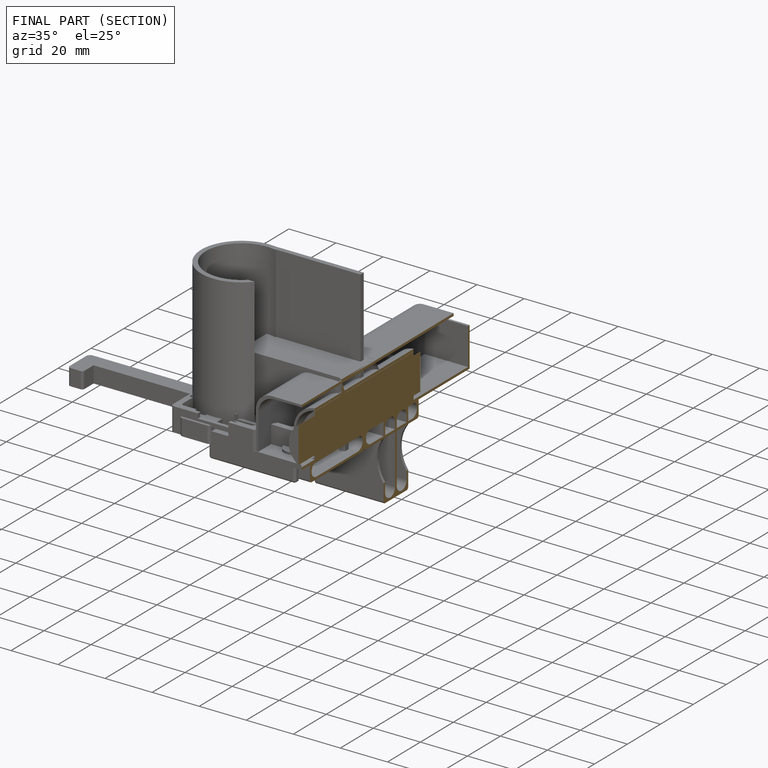
[diagram: finished part — half-section view (interior)]
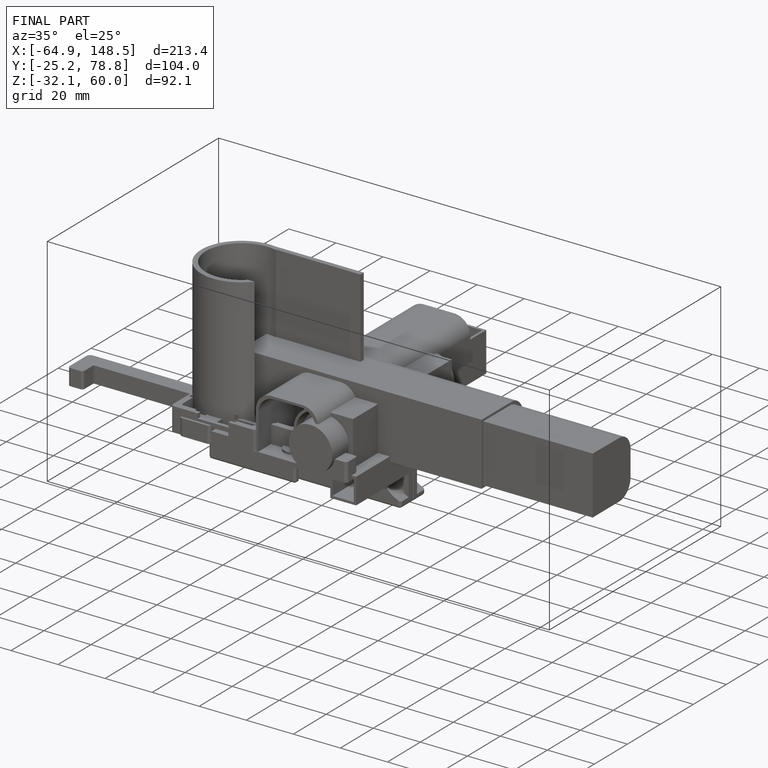
[diagram: finished part — iso view with bounding-box wireframe]
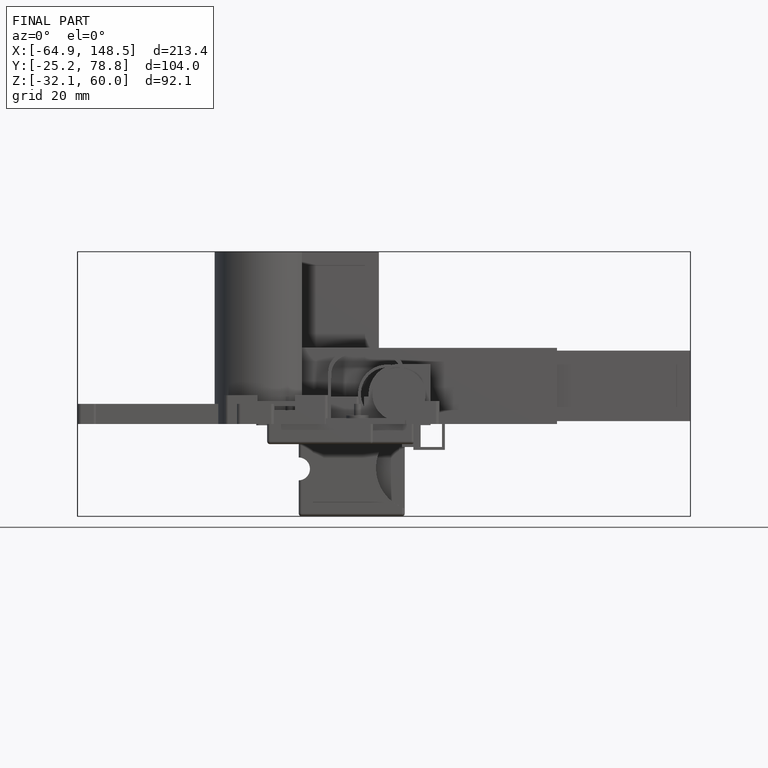
[diagram: finished part — front view with bounding-box wireframe]
